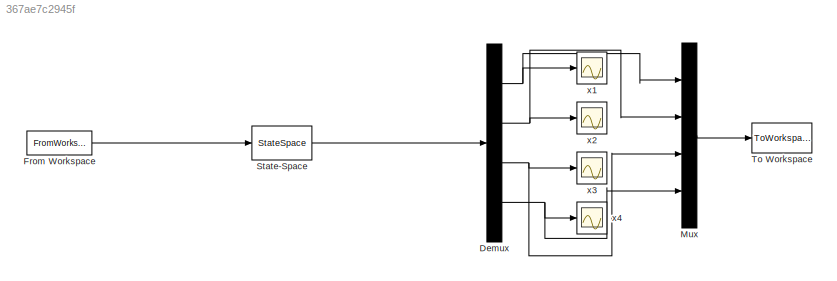
MODEL slx_367ae7c2945f
KIND model
CONFIG AbsTol = auto
CONFIG FixedStep = auto
CONFIG MaxStep = auto
CONFIG MinStep = auto
CONFIG RelTol = 1e-3
CONFIG SampleTimeConstraint = Unconstrained
CONFIG Solver = ode4
CONFIG SolverMode = Auto
CONFIG SolverName = ode4
CONFIG StartTime = 0.0
CONFIG StopTime = 10
BLOCK [Demux] Demux
  DisplayOption = bar
  Ports = [1, 4]
BLOCK [FromWorkspace] From Workspace
  SampleTime = 0
  VariableName = u
  ZeroCross = on
BLOCK [Mux] Mux
  DisplayOption = bar
  Ports = [4, 1]
BLOCK [StateSpace] State-Space
  A = A
  B = B
  C = C
  D = D
  Ports = [1, 1]
  X0 = x0
BLOCK [ToWorkspace] To Workspace
  FixptAsFi = on
  MaxDataPoints = inf
  Ports = [1]
  SampleTime = -1
  Save2DSignal = 3-D array (concatenate along third dimension)
  SaveFormat = Timeseries
  VariableName = y
BLOCK [Scope] x1
  Floating = off
  NumInputPorts = 1
  Ports = [1]
BLOCK [Scope] x2
  Floating = off
  NumInputPorts = 1
  Ports = [1]
  SaveName = ScopeData1
BLOCK [Scope] x3
  Floating = off
  NumInputPorts = 1
  Ports = [1]
  SaveName = ScopeData2
BLOCK [Scope] x4
  Floating = off
  NumInputPorts = 1
  Ports = [1]
  SaveName = ScopeData4
  ZoomMode = yonly
NET Demux:1 -> Mux:1, x1:1
NET Demux:2 -> Mux:2, x2:1
NET Demux:3 -> Mux:3, x3:1
NET Demux:4 -> Mux:4, x4:1
LINE From Workspace:1 -> State-Space:1
LINE Mux:1 -> To Workspace:1
LINE State-Space:1 -> Demux:1
note: NET lines group one-source signal fan-out (src -> all destinations, sorted); 1:1 wires keep LINE
